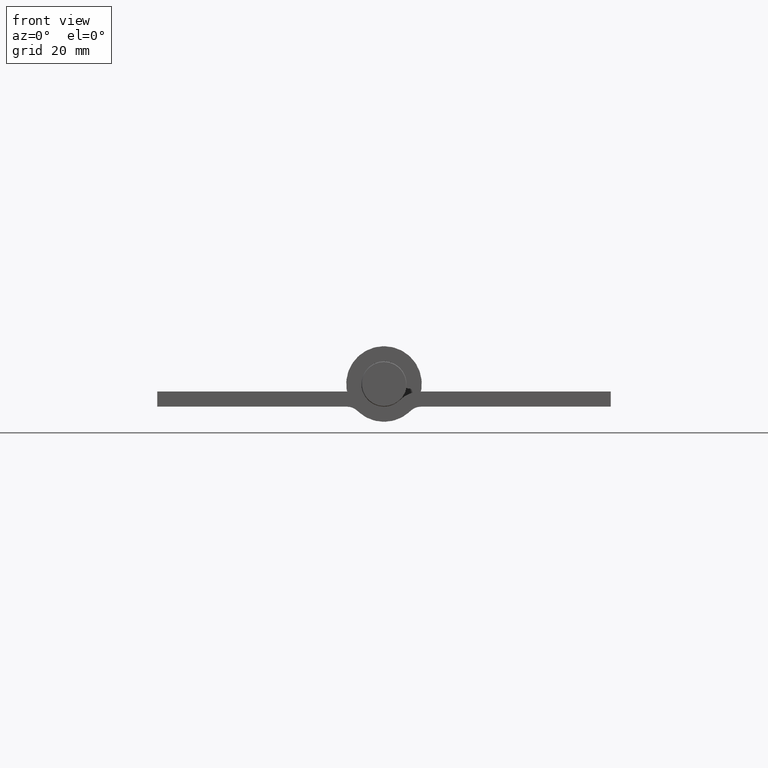
[diagram: clean part render]
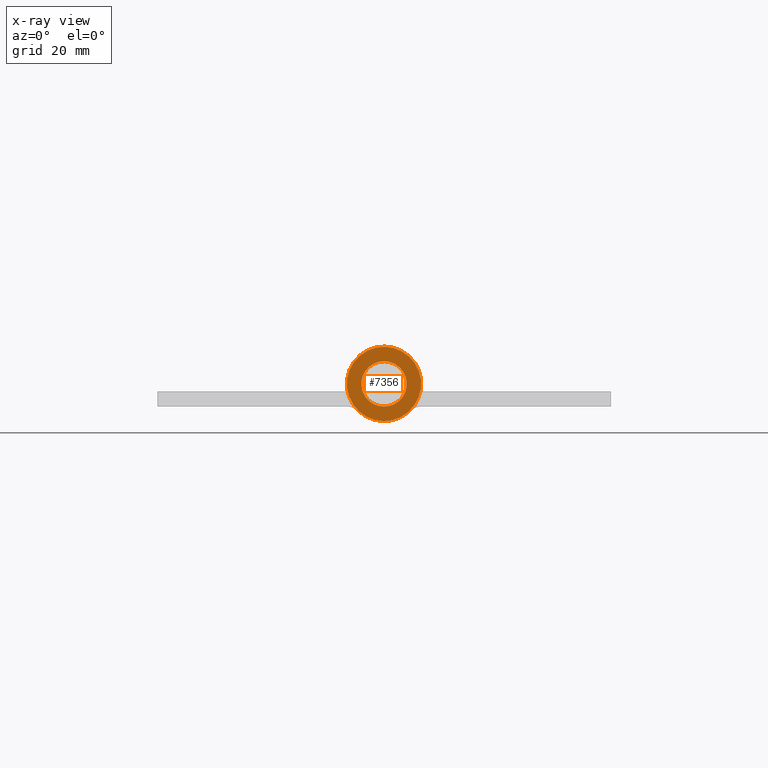
[diagram: x-ray — body ghosted, one internal face saturated and labeled with its STEP entity id]
A machine part, front view, then the same camera in x-ray: the body is ghosted and one INTERNAL B-rep face — a face not visible from any outside direction — is saturated and labeled: STEP entity #7356.
In plain terms, the highlighted planar face has unit normal (0, 1, 0).
Its self-contained STEP definition (entity closure, byte-faithful):
#435 = DIRECTION ( 'NONE',  ( -0.000000000000000000, 1.000000000000000000, 0.000000000000000000 ) ) ;
#543 = CARTESIAN_POINT ( 'NONE',  ( 0.000000000000000000, 46.00000000000000000, 0.000000000000000000 ) ) ;
#1040 = EDGE_CURVE ( 'NONE', #11023, #11023, #1238, .T. ) ;
#1238 = CIRCLE ( 'NONE', #1253, 3.750000000000000000 ) ;
#1253 = AXIS2_PLACEMENT_3D ( 'NONE', #2017, #6634, #1939 ) ;
#1489 = CARTESIAN_POINT ( 'NONE',  ( 0.000000000000000000, 46.00000000000000000, 0.000000000000000000 ) ) ;
#1521 = DIRECTION ( 'NONE',  ( -0.000000000000000000, 1.000000000000000000, -0.000000000000000000 ) ) ;
#1530 = AXIS2_PLACEMENT_3D ( 'NONE', #543, #1521, #8229 ) ;
#1534 = PLANE ( 'NONE',  #2087 ) ;
#1597 = CARTESIAN_POINT ( 'NONE',  ( 0.000000000000000000, 46.00000000000000000, 6.149999999999996803 ) ) ;
#1666 = CIRCLE ( 'NONE', #1530, 6.149999999999996803 ) ;
#1939 = DIRECTION ( 'NONE',  ( 0.000000000000000000, 0.000000000000000000, 1.000000000000000000 ) ) ;
#2017 = CARTESIAN_POINT ( 'NONE',  ( 0.000000000000000000, 46.00000000000000000, 0.000000000000000000 ) ) ;
#2087 = AXIS2_PLACEMENT_3D ( 'NONE', #1489, #435, #11084 ) ;
#2535 = EDGE_LOOP ( 'NONE', ( #4435 ) ) ;
#3601 = CARTESIAN_POINT ( 'NONE',  ( 0.000000000000000000, 46.00000000000000000, 3.750000000000000000 ) ) ;
#3834 = ORIENTED_EDGE ( 'NONE', *, *, #1040, .T. ) ;
#4435 = ORIENTED_EDGE ( 'NONE', *, *, #5622, .F. ) ;
#5622 = EDGE_CURVE ( 'NONE', #5914, #5914, #1666, .T. ) ;
#5824 = FACE_OUTER_BOUND ( 'NONE', #2535, .T. ) ;
#5914 = VERTEX_POINT ( 'NONE', #1597 ) ;
#6634 = DIRECTION ( 'NONE',  ( 0.000000000000000000, 1.000000000000000000, 0.000000000000000000 ) ) ;
#7356 = ADVANCED_FACE ( 'NONE', ( #11242, #5824 ), #1534, .F. ) ;
#8229 = DIRECTION ( 'NONE',  ( 0.000000000000000000, 0.000000000000000000, 1.000000000000000000 ) ) ;
#11023 = VERTEX_POINT ( 'NONE', #3601 ) ;
#11084 = DIRECTION ( 'NONE',  ( 0.000000000000000000, 0.000000000000000000, 1.000000000000000000 ) ) ;
#11242 = FACE_BOUND ( 'NONE', #12036, .T. ) ;
#12036 = EDGE_LOOP ( 'NONE', ( #3834 ) ) ;